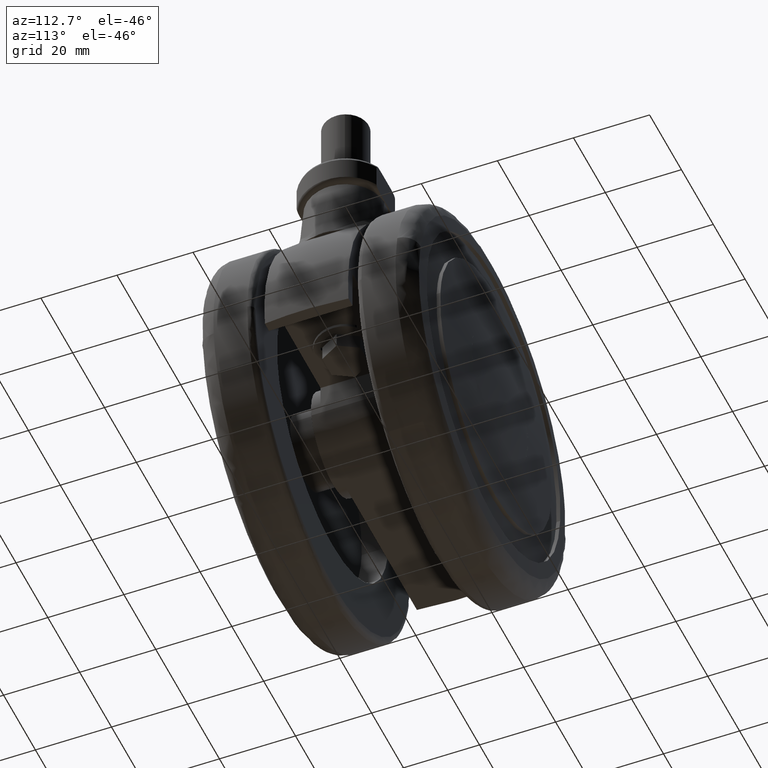
[diagram: clean part render]
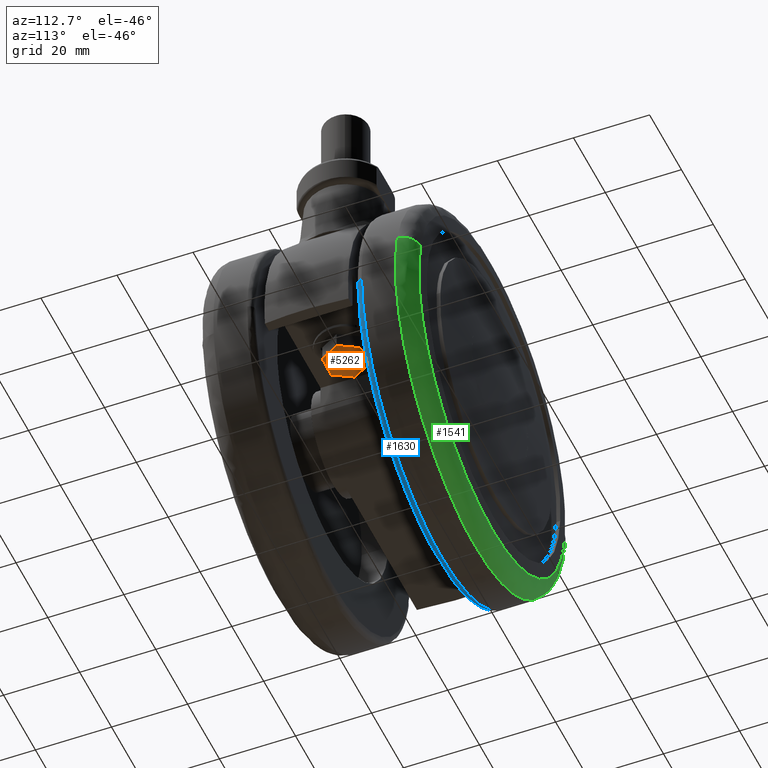
[diagram: same view with three faces highlighted in distinct colors, each labeled with its STEP entity id]
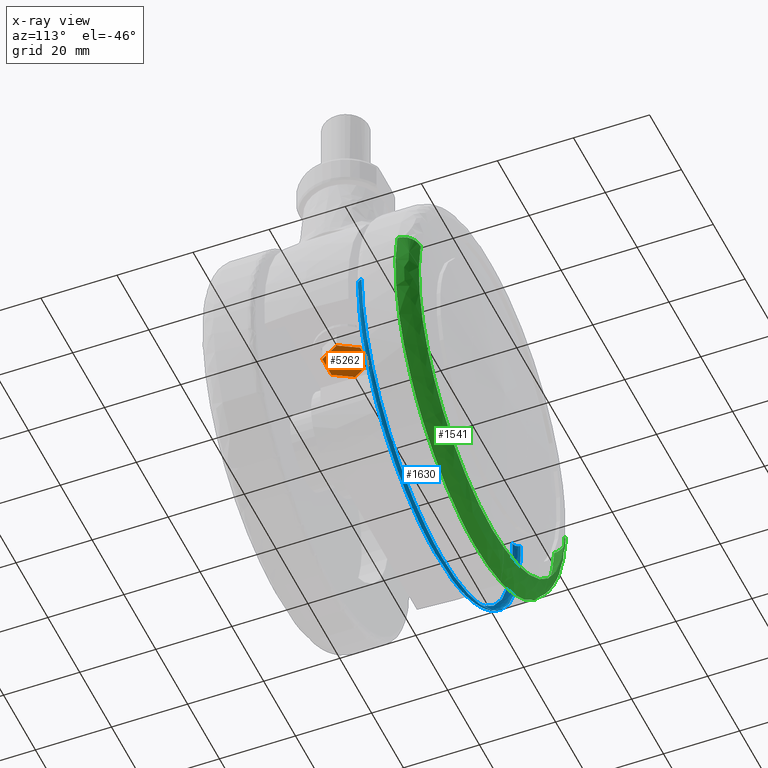
[diagram: x-ray of the same camera — body ghosted, the three highlighted faces saturated]
A machine part, auxiliary view with three faces highlighted in distinct colors.
The next image is the same camera in x-ray (body ghosted, the three faces saturated) — at least one of them is partly hidden behind the body in this view.
Their STEP definitions:

[orange] entity #5262 — the highlighted face is a freeform B-spline surface patch.
#5213=CARTESIAN_POINT('',(17.649724773000472,5.499499980618060,1.0));
#5214=CARTESIAN_POINT('',(30.350275156143908,5.499499980618060,1.0));
#5215=CARTESIAN_POINT('',(17.649724773000472,-5.499500248838961,1.0));
#5216=CARTESIAN_POINT('',(30.350275156143908,-5.499500248838961,1.0));
#5217=B_SPLINE_SURFACE_WITH_KNOTS('',1,1,((#5213,#5215),(#5214,#5216)),.UNSPECIFIED.,.F.,.F.,.U.,(2,2),(2,2),(0.0,12.700550383143440),(0.0,10.999000229457019),.UNSPECIFIED.);
#5218=CARTESIAN_POINT('',(21.113247999999999,-5.0,1.0));
#5219=VERTEX_POINT('',#5218);
#5220=CARTESIAN_POINT('',(26.886750999999951,-5.0,1.0));
#5221=VERTEX_POINT('',#5220);
#5222=CARTESIAN_POINT('',(21.113247999999999,-5.0,1.0));
#5223=CARTESIAN_POINT('',(26.886750999999951,-5.0,1.0));
#5224=QUASI_UNIFORM_CURVE('',1,(#5222,#5223),.UNSPECIFIED.,.F.,.U.);
#5225=EDGE_CURVE('',#5219,#5221,#5224,.T.);
#5226=ORIENTED_EDGE('',*,*,#5225,.F.);
#5227=CARTESIAN_POINT('',(18.226496999999998,0.0,1.0));
#5228=VERTEX_POINT('',#5227);
#5229=CARTESIAN_POINT('',(18.226496999999998,0.0,1.0));
#5230=CARTESIAN_POINT('',(21.113247999999999,-5.0,1.0));
#5231=QUASI_UNIFORM_CURVE('',1,(#5229,#5230),.UNSPECIFIED.,.F.,.U.);
#5232=EDGE_CURVE('',#5228,#5219,#5231,.T.);
#5233=ORIENTED_EDGE('',*,*,#5232,.F.);
#5234=CARTESIAN_POINT('',(21.113247999999999,5.0,1.0));
#5235=VERTEX_POINT('',#5234);
#5236=CARTESIAN_POINT('',(21.113247999999999,5.0,1.0));
#5237=CARTESIAN_POINT('',(18.226496999999998,0.0,1.0));
#5238=QUASI_UNIFORM_CURVE('',1,(#5236,#5237),.UNSPECIFIED.,.F.,.U.);
#5239=EDGE_CURVE('',#5235,#5228,#5238,.T.);
#5240=ORIENTED_EDGE('',*,*,#5239,.F.);
#5241=CARTESIAN_POINT('',(26.886750999999951,5.0,1.0));
#5242=VERTEX_POINT('',#5241);
#5243=CARTESIAN_POINT('',(26.886750999999951,5.0,1.0));
#5244=CARTESIAN_POINT('',(21.113247999999999,5.0,1.0));
#5245=QUASI_UNIFORM_CURVE('',1,(#5243,#5244),.UNSPECIFIED.,.F.,.U.);
#5246=EDGE_CURVE('',#5242,#5235,#5245,.T.);
#5247=ORIENTED_EDGE('',*,*,#5246,.F.);
#5248=CARTESIAN_POINT('',(29.773501999999951,0.0,1.0));
#5249=VERTEX_POINT('',#5248);
#5250=CARTESIAN_POINT('',(29.773501999999951,0.0,1.0));
#5251=CARTESIAN_POINT('',(26.886750999999951,5.0,1.0));
#5252=QUASI_UNIFORM_CURVE('',1,(#5250,#5251),.UNSPECIFIED.,.F.,.U.);
#5253=EDGE_CURVE('',#5249,#5242,#5252,.T.);
#5254=ORIENTED_EDGE('',*,*,#5253,.F.);
#5255=CARTESIAN_POINT('',(26.886750999999951,-5.0,1.0));
#5256=CARTESIAN_POINT('',(29.773501999999951,0.0,1.0));
#5257=QUASI_UNIFORM_CURVE('',1,(#5255,#5256),.UNSPECIFIED.,.F.,.U.);
#5258=EDGE_CURVE('',#5221,#5249,#5257,.T.);
#5259=ORIENTED_EDGE('',*,*,#5258,.F.);
#5260=EDGE_LOOP('',(#5226,#5233,#5240,#5247,#5254,#5259));
#5261=FACE_OUTER_BOUND('',#5260,.T.);
#5262=ADVANCED_FACE('',(#5261),#5217,.T.);

[blue] entity #1630 — the highlighted face is a freeform B-spline surface patch.
#869=CARTESIAN_POINT('',(49.984209464156407,14.999999993750169,-1.256504772508640));
#870=VERTEX_POINT('',#869);
#886=CARTESIAN_POINT('',(32.716979507290482,14.999999998437010,-37.810041680965547));
#887=VERTEX_POINT('',#886);
#888=CARTESIAN_POINT('',(49.984209464156415,14.999999993750173,-1.256504772508640));
#889=CARTESIAN_POINT('',(49.428840258933917,14.999999996582881,-23.349290477416588));
#890=CARTESIAN_POINT('',(32.716979507290475,14.999999998437010,-37.810041680965554));
#898=(BOUNDED_CURVE()B_SPLINE_CURVE(2,(#888,#889,#890),.UNSPECIFIED.,.F.,.U.)B_SPLINE_CURVE_WITH_KNOTS((3,3),(0.254420108232585,0.385882133306329),.UNSPECIFIED.)CURVE()GEOMETRIC_REPRESENTATION_ITEM()RATIONAL_B_SPLINE_CURVE((0.989826157676168,0.841255001569349,0.854663299607536))REPRESENTATION_ITEM(''));
#899=EDGE_CURVE('',#870,#887,#898,.T.);
#943=CARTESIAN_POINT('',(0.0,15.0,-49.999999999999993));
#944=VERTEX_POINT('',#943);
#945=CARTESIAN_POINT('',(32.716979507290475,14.999999998437010,-37.810041680965554));
#946=CARTESIAN_POINT('',(18.629406660637542,14.999999999999996,-49.999999999999993));
#947=CARTESIAN_POINT('',(0.0,15.0,-49.999999999999993));
#955=(BOUNDED_CURVE()B_SPLINE_CURVE(2,(#945,#946,#947),.UNSPECIFIED.,.F.,.U.)B_SPLINE_CURVE_WITH_KNOTS((3,3),(0.385882133306329,0.500000000000000),.UNSPECIFIED.)CURVE()GEOMETRIC_REPRESENTATION_ITEM()RATIONAL_B_SPLINE_CURVE((0.854663299607536,0.866302602799865,1.0))REPRESENTATION_ITEM(''));
#956=EDGE_CURVE('',#887,#944,#955,.T.);
#958=CARTESIAN_POINT('',(-49.984209464156393,14.999999993750169,1.256504772508655));
#959=VERTEX_POINT('',#958);
#960=CARTESIAN_POINT('',(0.0,15.0,-49.999999999999993));
#961=CARTESIAN_POINT('',(-49.999999999999993,14.999999999999996,-49.999999999999993));
#962=CARTESIAN_POINT('',(-50.0,15.0,5.510729E-015));
#963=CARTESIAN_POINT('',(-49.999999999999993,14.999999999999995,0.628351606510838));
#964=CARTESIAN_POINT('',(-49.984209464156393,14.999999993750171,1.256504772508655));
#972=(BOUNDED_CURVE()B_SPLINE_CURVE(2,(#960,#961,#962,#963,#964),.UNSPECIFIED.,.F.,.U.)B_SPLINE_CURVE_WITH_KNOTS((3,2,3),(0.500000000000000,0.750000000000000,0.754420108232585),.UNSPECIFIED.)CURVE()GEOMETRIC_REPRESENTATION_ITEM()RATIONAL_B_SPLINE_CURVE((1.0,0.707106781186547,1.0,0.994821521089018,0.989826157676169))REPRESENTATION_ITEM(''));
#973=EDGE_CURVE('',#944,#959,#972,.T.);
#1542=CARTESIAN_POINT('',(-49.980560076120419,15.104586310406608,1.256413033725029));
#1543=CARTESIAN_POINT('',(-51.236973109845465,15.104586310406626,-48.724147042395366));
#1544=CARTESIAN_POINT('',(-1.256413033725038,15.104586310406630,-49.980560076120412));
#1545=CARTESIAN_POINT('',(48.724147042395380,15.104586310406630,-51.236973109845458));
#1546=CARTESIAN_POINT('',(49.980560076120419,15.104586310406608,-1.256413033725035));
#1547=CARTESIAN_POINT('',(-50.100781590263622,13.383995659792424,1.259435166271635));
#1548=CARTESIAN_POINT('',(-51.360216756535266,13.383995659792449,-48.841346423991979));
#1549=CARTESIAN_POINT('',(-1.259435166271644,13.383995659792442,-50.100781590263601));
#1550=CARTESIAN_POINT('',(48.841346423991979,13.383995659792449,-51.360216756535266));
#1551=CARTESIAN_POINT('',(50.100781590263622,13.383995659792424,-1.259435166271643));
#1552=CARTESIAN_POINT('',(-48.380689469666301,13.503611522988527,1.216195431538076));
#1553=CARTESIAN_POINT('',(-49.596884901204376,13.503611522988543,-47.164494038128204));
#1554=CARTESIAN_POINT('',(-1.216195431538085,13.503611522988535,-48.380689469666301));
#1555=CARTESIAN_POINT('',(47.164494038128204,13.503611522988543,-49.596884901204376));
#1556=CARTESIAN_POINT('',(48.380689469666301,13.503611522988527,-1.216195431538082));
#1564=(BOUNDED_SURFACE()B_SPLINE_SURFACE(2,2,((#1542,#1547,#1552),(#1543,#1548,#1553),(#1544,#1549,#1554),(#1545,#1550,#1555),(#1546,#1551,#1556)),.UNSPECIFIED.,.F.,.F.,.U.)B_SPLINE_SURFACE_WITH_KNOTS((3,2,3),(3,3),(0.0,82.836664060375256,165.673328120750510),(0.0,2.733556377937263),.UNSPECIFIED.)GEOMETRIC_REPRESENTATION_ITEM()RATIONAL_B_SPLINE_SURFACE(((0.910892950627466,0.599412832290527,0.915966818727494),(0.644098582323704,0.423848878442866,0.647686348864080),(0.910892950627466,0.599412832290527,0.915966818727494),(0.644098582323704,0.423848878442866,0.647686348864080),(0.910892950627466,0.599412832290527,0.915966818727494)))REPRESENTATION_ITEM('')SURFACE());
#1565=ORIENTED_EDGE('',*,*,#973,.F.);
#1566=ORIENTED_EDGE('',*,*,#956,.F.);
#1567=ORIENTED_EDGE('',*,*,#899,.F.);
#1568=CARTESIAN_POINT('',(48.484683325863180,13.500000000000011,-1.218809635096467));
#1569=VERTEX_POINT('',#1568);
#1570=CARTESIAN_POINT('',(49.984209464156400,14.999999993750167,-1.256504772508640));
#1571=CARTESIAN_POINT('',(49.984209451669280,13.500000291460580,-1.256504771852746));
#1572=CARTESIAN_POINT('',(48.484683325863180,13.500000000000016,-1.218809635096466));
#1580=(BOUNDED_CURVE()B_SPLINE_CURVE(2,(#1570,#1571,#1572),.UNSPECIFIED.,.F.,.U.)B_SPLINE_CURVE_WITH_KNOTS((3,3),(-1.723441273405082,-0.263587080028462),.UNSPECIFIED.)CURVE()GEOMETRIC_REPRESENTATION_ITEM()RATIONAL_B_SPLINE_CURVE((0.883897564114801,0.626638764214989,0.888510336914871))REPRESENTATION_ITEM(''));
#1581=EDGE_CURVE('',#870,#1569,#1580,.T.);
#1582=ORIENTED_EDGE('',*,*,#1581,.T.);
#1583=CARTESIAN_POINT('',(0.0,13.500000000000000,-48.499999999999993));
#1584=VERTEX_POINT('',#1583);
#1585=CARTESIAN_POINT('',(48.484683325863188,13.500000000000016,-1.218809635096466));
#1586=CARTESIAN_POINT('',(47.296126990014464,13.499999999999998,-48.500000000000007));
#1587=CARTESIAN_POINT('',(0.0,13.500000000000000,-48.499999999999993));
#1595=(BOUNDED_CURVE()B_SPLINE_CURVE(2,(#1585,#1586,#1587),.UNSPECIFIED.,.F.,.U.)B_SPLINE_CURVE_WITH_KNOTS((3,3),(0.254420108247749,0.500000000000000),.UNSPECIFIED.)CURVE()GEOMETRIC_REPRESENTATION_ITEM()RATIONAL_B_SPLINE_CURVE((0.989826157641893,0.712285260115296,1.0))REPRESENTATION_ITEM(''));
#1596=EDGE_CURVE('',#1569,#1584,#1595,.T.);
#1597=ORIENTED_EDGE('',*,*,#1596,.T.);
#1598=CARTESIAN_POINT('',(-48.484683325863173,13.500000000000011,1.218809635096489));
#1599=VERTEX_POINT('',#1598);
#1600=CARTESIAN_POINT('',(0.0,13.500000000000000,-48.499999999999993));
#1601=CARTESIAN_POINT('',(-48.500000000000014,13.500000000000000,-48.500000000000014));
#1602=CARTESIAN_POINT('',(-48.500000000000000,13.500000000000000,4.959656E-015));
#1603=CARTESIAN_POINT('',(-48.500000000000000,13.500000000000000,0.609501060417324));
#1604=CARTESIAN_POINT('',(-48.484683325863180,13.500000000000018,1.218809635096488));
#1612=(BOUNDED_CURVE()B_SPLINE_CURVE(2,(#1600,#1601,#1602,#1603,#1604),.UNSPECIFIED.,.F.,.U.)B_SPLINE_CURVE_WITH_KNOTS((3,2,3),(0.500000000000000,0.750000000000000,0.754420108247748),.UNSPECIFIED.)CURVE()GEOMETRIC_REPRESENTATION_ITEM()RATIONAL_B_SPLINE_CURVE((1.0,0.707106781186547,1.0,0.994821521071253,0.989826157641895))REPRESENTATION_ITEM(''));
#1613=EDGE_CURVE('',#1584,#1599,#1612,.T.);
#1614=ORIENTED_EDGE('',*,*,#1613,.T.);
#1615=CARTESIAN_POINT('',(-49.984209464156393,14.999999993750164,1.256504772508655));
#1616=CARTESIAN_POINT('',(-49.984209451669280,13.500000291460580,1.256504771852764));
#1617=CARTESIAN_POINT('',(-48.484683325863173,13.500000000000018,1.218809635096489));
#1625=(BOUNDED_CURVE()B_SPLINE_CURVE(2,(#1615,#1616,#1617),.UNSPECIFIED.,.F.,.U.)B_SPLINE_CURVE_WITH_KNOTS((3,3),(-1.723441273405082,-0.263587080028458),.UNSPECIFIED.)CURVE()GEOMETRIC_REPRESENTATION_ITEM()RATIONAL_B_SPLINE_CURVE((0.883897564114801,0.626638764214988,0.888510336914872))REPRESENTATION_ITEM(''));
#1626=EDGE_CURVE('',#959,#1599,#1625,.T.);
#1627=ORIENTED_EDGE('',*,*,#1626,.F.);
#1628=EDGE_LOOP('',(#1565,#1566,#1567,#1582,#1597,#1614,#1627));
#1629=FACE_OUTER_BOUND('',#1628,.T.);
#1630=ADVANCED_FACE('',(#1629),#1564,.T.);

[green] entity #1541 — the highlighted face is a freeform B-spline surface patch.
#798=CARTESIAN_POINT('',(48.835411856445369,23.916532002915709,10.728585592302201));
#799=VERTEX_POINT('',#798);
#800=CARTESIAN_POINT('',(32.716978859741182,23.916532000000078,-37.810042241330812));
#801=VERTEX_POINT('',#800);
#802=CARTESIAN_POINT('',(48.835411856445369,23.916532002915702,10.728585592302203));
#803=CARTESIAN_POINT('',(50.000000000000007,23.916532000000000,5.427500827327885));
#804=CARTESIAN_POINT('',(50.0,23.916532000000000,8.786501E-015));
#805=CARTESIAN_POINT('',(49.999999999999993,23.916532000000004,-22.855067219901386));
#806=CARTESIAN_POINT('',(32.716978859741175,23.916532000000071,-37.810042241330812));
#814=(BOUNDED_CURVE()B_SPLINE_CURVE(2,(#802,#803,#804,#805,#806),.UNSPECIFIED.,.F.,.U.)B_SPLINE_CURVE_WITH_KNOTS((3,2,3),(0.213273120221615,0.250000000000000,0.385882135893770),.UNSPECIFIED.)CURVE()GEOMETRIC_REPRESENTATION_ITEM()RATIONAL_B_SPLINE_CURVE((0.926585904688203,0.956971783858937,1.0,0.840804175355307,0.854663300135341))REPRESENTATION_ITEM(''));
#815=EDGE_CURVE('',#799,#801,#814,.T.);
#927=CARTESIAN_POINT('',(0.0,23.916532000000000,-49.999999999999993));
#928=VERTEX_POINT('',#927);
#929=CARTESIAN_POINT('',(32.716978859741175,23.916532000000071,-37.810042241330812));
#930=CARTESIAN_POINT('',(18.629406173057216,23.916532000000007,-49.999999999999993));
#931=CARTESIAN_POINT('',(0.0,23.916532000000000,-49.999999999999993));
#939=(BOUNDED_CURVE()B_SPLINE_CURVE(2,(#929,#930,#931),.UNSPECIFIED.,.F.,.U.)B_SPLINE_CURVE_WITH_KNOTS((3,3),(0.385882135893770,0.500000000000000),.UNSPECIFIED.)CURVE()GEOMETRIC_REPRESENTATION_ITEM()RATIONAL_B_SPLINE_CURVE((0.854663300135341,0.866302605831240,1.0))REPRESENTATION_ITEM(''));
#940=EDGE_CURVE('',#801,#928,#939,.T.);
#989=CARTESIAN_POINT('',(-49.747550849046007,23.916532002913879,-5.018085742748917));
#990=VERTEX_POINT('',#989);
#1006=CARTESIAN_POINT('',(0.0,23.916532000000000,-49.999999999999993));
#1007=CARTESIAN_POINT('',(-45.210179686607525,23.916531999999997,-49.999999999999986));
#1008=CARTESIAN_POINT('',(-49.747550849046014,23.916532002913883,-5.018085742748917));
#1016=(BOUNDED_CURVE()B_SPLINE_CURVE(2,(#1006,#1007,#1008),.UNSPECIFIED.,.F.,.U.)B_SPLINE_CURVE_WITH_KNOTS((3,3),(0.500000000000000,0.732576558916580),.UNSPECIFIED.)CURVE()GEOMETRIC_REPRESENTATION_ITEM()RATIONAL_B_SPLINE_CURVE((1.0,0.727519612153466,0.962019632127747))REPRESENTATION_ITEM(''));
#1017=EDGE_CURVE('',#928,#990,#1016,.T.);
#1411=CARTESIAN_POINT('',(44.910215463507292,28.390730014165960,9.866264505220133));
#1412=VERTEX_POINT('',#1411);
#1426=CARTESIAN_POINT('',(-45.749040341213707,28.390730014867369,-4.614751946081857));
#1427=VERTEX_POINT('',#1426);
#1443=CARTESIAN_POINT('',(-45.749040341213707,28.390730014867358,-4.614751946081857));
#1444=CARTESIAN_POINT('',(-49.747550843856828,27.958509145381932,-5.018085742035375));
#1445=CARTESIAN_POINT('',(-49.747550849046014,23.916532002913886,-5.018085742748917));
#1453=(BOUNDED_CURVE()B_SPLINE_CURVE(2,(#1443,#1444,#1445),.UNSPECIFIED.,.F.,.U.)B_SPLINE_CURVE_WITH_KNOTS((3,3),(-1.715458031746651,-0.290894269206445),.UNSPECIFIED.)CURVE()GEOMETRIC_REPRESENTATION_ITEM()RATIONAL_B_SPLINE_CURVE((0.890446804650246,0.661694922310042,0.888415796910121))REPRESENTATION_ITEM(''));
#1454=EDGE_CURVE('',#1427,#990,#1453,.T.);
#1459=CARTESIAN_POINT('',(44.910215463507285,28.390730014165964,9.866264505220133));
#1460=CARTESIAN_POINT('',(48.835411851351118,27.958509133530995,10.728585591079876));
#1461=CARTESIAN_POINT('',(48.835411856445361,23.916532002915702,10.728585592302203));
#1469=(BOUNDED_CURVE()B_SPLINE_CURVE(2,(#1459,#1460,#1461),.UNSPECIFIED.,.F.,.U.)B_SPLINE_CURVE_WITH_KNOTS((3,3),(-1.715458028635688,-0.290894269207309),.UNSPECIFIED.)CURVE()GEOMETRIC_REPRESENTATION_ITEM()RATIONAL_B_SPLINE_CURVE((0.852056185401029,0.633166686109626,0.850112743244324))REPRESENTATION_ITEM(''));
#1470=EDGE_CURVE('',#1412,#799,#1469,.T.);
#1475=CARTESIAN_POINT('',(-45.455246369834143,28.412689923064203,-4.585116650769494));
#1476=CARTESIAN_POINT('',(-40.870129719064643,28.412689923064232,-50.040363020603650));
#1477=CARTESIAN_POINT('',(4.585116650769500,28.412689923064228,-45.455246369834128));
#1478=CARTESIAN_POINT('',(50.040363020603650,28.412689923064232,-40.870129719064643));
#1479=CARTESIAN_POINT('',(45.455246369834143,28.412689923064203,4.585116650769509));
#1480=CARTESIAN_POINT('',(45.189649686327833,28.412689923064217,7.218149483590420));
#1481=CARTESIAN_POINT('',(44.621808302543755,28.412689923064214,9.802904725361803));
#1482=CARTESIAN_POINT('',(-50.040316470785875,28.222137582931886,-5.047617306772337));
#1483=CARTESIAN_POINT('',(-44.992699164013544,28.222137582931911,-55.087933777558227));
#1484=CARTESIAN_POINT('',(5.047617306772343,28.222137582931900,-50.040316470785875));
#1485=CARTESIAN_POINT('',(55.087933777558227,28.222137582931911,-44.992699164013544));
#1486=CARTESIAN_POINT('',(50.040316470785875,28.222137582931886,5.047617306772351));
#1487=CARTESIAN_POINT('',(49.747929053322288,28.222137582931893,7.946244126662779));
#1488=CARTESIAN_POINT('',(49.122809516655963,28.222137582931882,10.791723595532162));
#1489=CARTESIAN_POINT('',(-49.737812506430011,23.619894093457500,-5.017103426094918));
#1490=CARTESIAN_POINT('',(-44.720709080335091,23.619894093457525,-54.754915932524916));
#1491=CARTESIAN_POINT('',(5.017103426094925,23.619894093457511,-49.737812506430011));
#1492=CARTESIAN_POINT('',(54.754915932524938,23.619894093457507,-44.720709080335077));
#1493=CARTESIAN_POINT('',(49.737812506430011,23.619894093457500,5.017103426094931));
#1494=CARTESIAN_POINT('',(49.447192630803649,23.619894093457493,7.898207453044647));
#1495=CARTESIAN_POINT('',(48.825852069798863,23.619894093457496,10.726485415598047));
#1503=(BOUNDED_SURFACE()B_SPLINE_SURFACE(2,2,((#1475,#1482,#1489),(#1476,#1483,#1490),(#1477,#1484,#1491),(#1478,#1485,#1492),(#1479,#1486,#1493),(#1480,#1487,#1494),(#1481,#1488,#1495)),.UNSPECIFIED.,.F.,.F.,.U.)B_SPLINE_SURFACE_WITH_KNOTS((3,2,2,3),(3,3),(0.0,82.826495581422819,165.652991162845610,172.279110809359510),(0.0,7.586086347082316),.UNSPECIFIED.)GEOMETRIC_REPRESENTATION_ITEM()RATIONAL_B_SPLINE_SURFACE(((0.914435655211732,0.637807606089111,0.912201580162923),(0.646603652758979,0.450998083357968,0.645023923142287),(0.914435655211732,0.637807606089111,0.912201580162923),(0.646603652758979,0.450998083357968,0.645023923142287),(0.914435655211732,0.637807606089111,0.912201580162923),(0.893009095015512,0.622862844270619,0.890827367601272),(0.875010784450687,0.610309244343087,0.872873029049485)))REPRESENTATION_ITEM('')SURFACE());
#1504=CARTESIAN_POINT('',(0.0,28.390730015846849,-45.981198623223783));
#1505=VERTEX_POINT('',#1504);
#1506=CARTESIAN_POINT('',(44.910215463507292,28.390730014165960,9.866264505220133));
#1507=CARTESIAN_POINT('',(45.981198623223811,28.390730015846849,4.991259871949747));
#1508=CARTESIAN_POINT('',(45.981198623223797,28.390730015846849,1.043024E-014));
#1509=CARTESIAN_POINT('',(45.981198623223804,28.390730015846845,-45.981198623223783));
#1510=CARTESIAN_POINT('',(0.0,28.390730015846849,-45.981198623223783));
#1518=(BOUNDED_CURVE()B_SPLINE_CURVE(2,(#1506,#1507,#1508,#1509,#1510),.UNSPECIFIED.,.F.,.U.)B_SPLINE_CURVE_WITH_KNOTS((3,2,3),(0.213273120217614,0.250000000000000,0.500000000000000),.UNSPECIFIED.)CURVE()GEOMETRIC_REPRESENTATION_ITEM()RATIONAL_B_SPLINE_CURVE((0.926585904681582,0.956971783854249,1.0,0.707106781186547,1.0))REPRESENTATION_ITEM(''));
#1519=EDGE_CURVE('',#1412,#1505,#1518,.T.);
#1520=ORIENTED_EDGE('',*,*,#1519,.F.);
#1521=ORIENTED_EDGE('',*,*,#1470,.T.);
#1522=ORIENTED_EDGE('',*,*,#815,.T.);
#1523=ORIENTED_EDGE('',*,*,#940,.T.);
#1524=ORIENTED_EDGE('',*,*,#1017,.T.);
#1525=ORIENTED_EDGE('',*,*,#1454,.F.);
#1526=CARTESIAN_POINT('',(0.0,28.390730015846849,-45.981198623223783));
#1527=CARTESIAN_POINT('',(-41.576365038767008,28.390730015846859,-45.981198623223783));
#1528=CARTESIAN_POINT('',(-45.749040341213714,28.390730014867362,-4.614751946081857));
#1536=(BOUNDED_CURVE()B_SPLINE_CURVE(2,(#1526,#1527,#1528),.UNSPECIFIED.,.F.,.U.)B_SPLINE_CURVE_WITH_KNOTS((3,3),(0.500000000000000,0.732576558914692),.UNSPECIFIED.)CURVE()GEOMETRIC_REPRESENTATION_ITEM()RATIONAL_B_SPLINE_CURVE((1.0,0.727519612155677,0.962019632123941))REPRESENTATION_ITEM(''));
#1537=EDGE_CURVE('',#1505,#1427,#1536,.T.);
#1538=ORIENTED_EDGE('',*,*,#1537,.F.);
#1539=EDGE_LOOP('',(#1520,#1521,#1522,#1523,#1524,#1525,#1538));
#1540=FACE_OUTER_BOUND('',#1539,.T.);
#1541=ADVANCED_FACE('',(#1540),#1503,.T.);